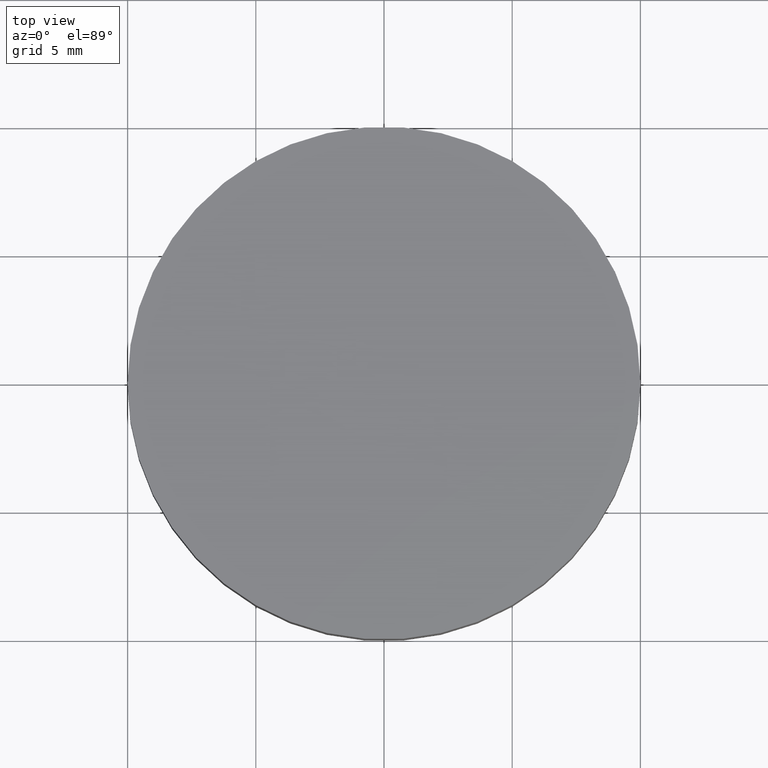
[diagram: clean part render]
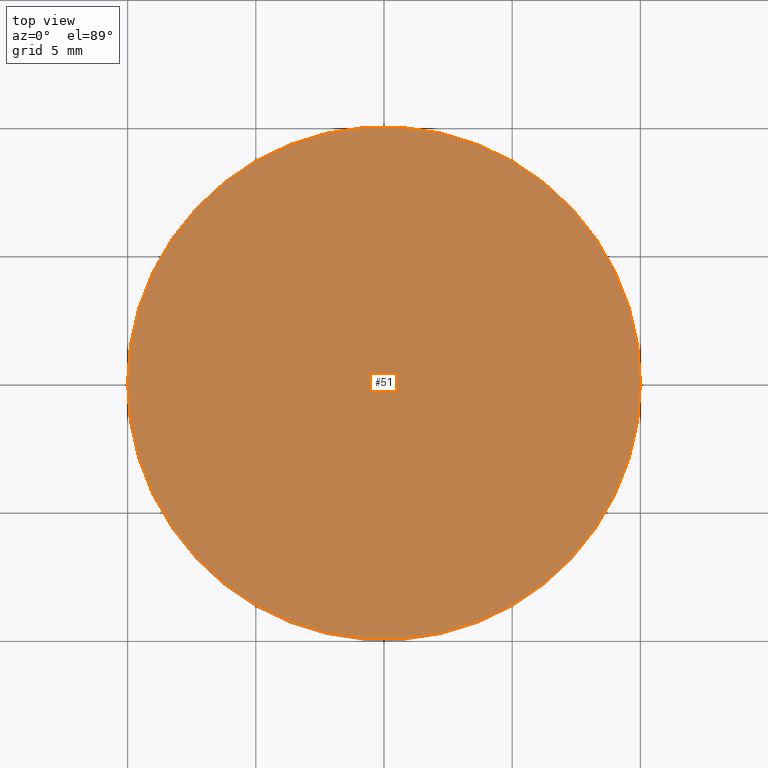
[diagram: same view with one face highlighted and labeled with its STEP entity id]
A machine part, top view. The second image highlights one B-rep face of the part: STEP entity #51.
In plain terms, the highlighted planar face has unit normal (0, 0, 1).
Its self-contained STEP definition (entity closure, byte-faithful):
#21 = CIRCLE ( 'NONE', #32, 10.00000000000000000 ) ;
#22 = PLANE ( 'NONE',  #124 ) ;
#32 = AXIS2_PLACEMENT_3D ( 'NONE', #199, #64, #86 ) ;
#40 = DIRECTION ( 'NONE',  ( 0.0000000000000000000, 0.0000000000000000000, 1.000000000000000000 ) ) ;
#48 = CARTESIAN_POINT ( 'NONE',  ( 0.0000000000000000000, 0.0000000000000000000, 4.000000000000000000 ) ) ;
#50 = ORIENTED_EDGE ( 'NONE', *, *, #143, .T. ) ;
#51 = ADVANCED_FACE ( 'NONE', ( #77 ), #22, .T. ) ;
#56 = EDGE_LOOP ( 'NONE', ( #50, #105 ) ) ;
#63 = DIRECTION ( 'NONE',  ( 0.0000000000000000000, 0.0000000000000000000, 1.000000000000000000 ) ) ;
#64 = DIRECTION ( 'NONE',  ( 0.0000000000000000000, 0.0000000000000000000, 1.000000000000000000 ) ) ;
#77 = FACE_OUTER_BOUND ( 'NONE', #56, .T. ) ;
#78 = CIRCLE ( 'NONE', #100, 10.00000000000000000 ) ;
#86 = DIRECTION ( 'NONE',  ( 1.000000000000000000, 0.0000000000000000000, 0.0000000000000000000 ) ) ;
#100 = AXIS2_PLACEMENT_3D ( 'NONE', #48, #63, #163 ) ;
#105 = ORIENTED_EDGE ( 'NONE', *, *, #186, .T. ) ;
#118 = VERTEX_POINT ( 'NONE', #214 ) ;
#124 = AXIS2_PLACEMENT_3D ( 'NONE', #157, #40, #173 ) ;
#143 = EDGE_CURVE ( 'NONE', #118, #208, #21, .T. ) ;
#157 = CARTESIAN_POINT ( 'NONE',  ( 0.0000000000000000000, 0.0000000000000000000, 4.000000000000000000 ) ) ;
#163 = DIRECTION ( 'NONE',  ( 1.000000000000000000, 0.0000000000000000000, 0.0000000000000000000 ) ) ;
#173 = DIRECTION ( 'NONE',  ( 1.000000000000000000, 0.0000000000000000000, -0.0000000000000000000 ) ) ;
#186 = EDGE_CURVE ( 'NONE', #208, #118, #78, .T. ) ;
#199 = CARTESIAN_POINT ( 'NONE',  ( 0.0000000000000000000, 0.0000000000000000000, 4.000000000000000000 ) ) ;
#208 = VERTEX_POINT ( 'NONE', #220 ) ;
#214 = CARTESIAN_POINT ( 'NONE',  ( -10.00000000000000000, 0.0000000000000000000, 4.000000000000000000 ) ) ;
#220 = CARTESIAN_POINT ( 'NONE',  ( 10.00000000000000000, 1.224646799147353300E-015, 4.000000000000000000 ) ) ;